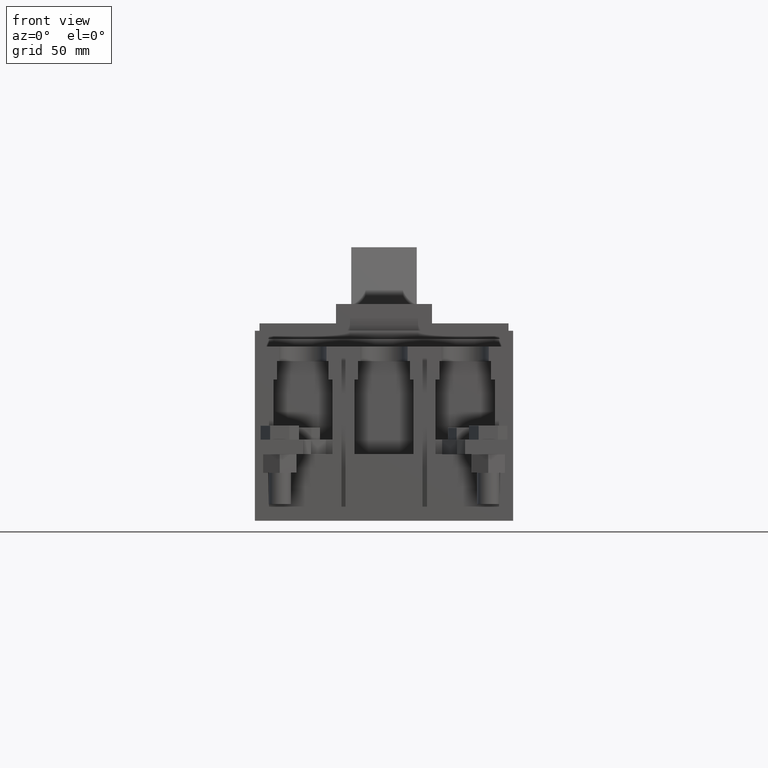
[diagram: clean part render]
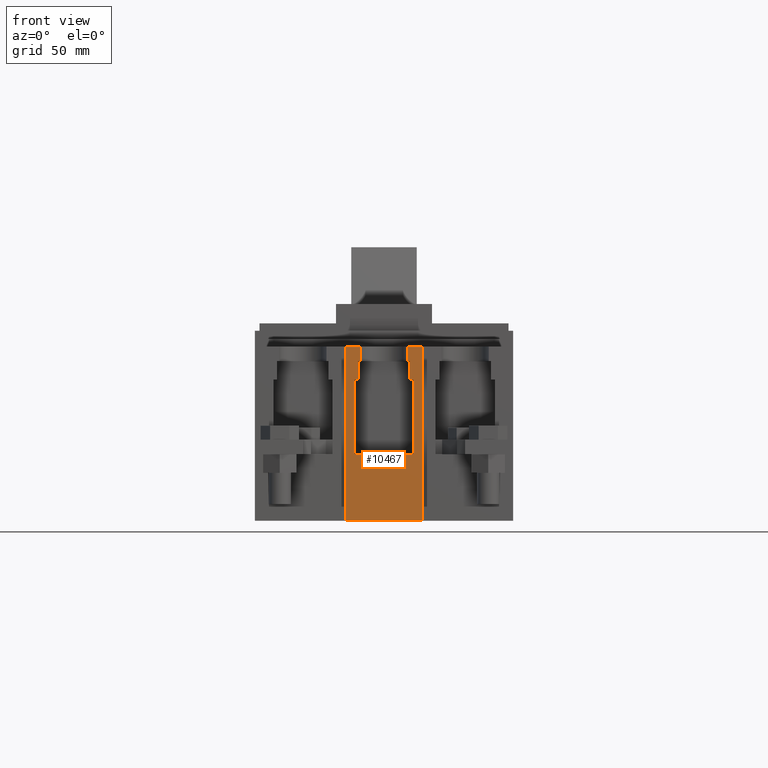
[diagram: same view with one face highlighted and labeled with its STEP entity id]
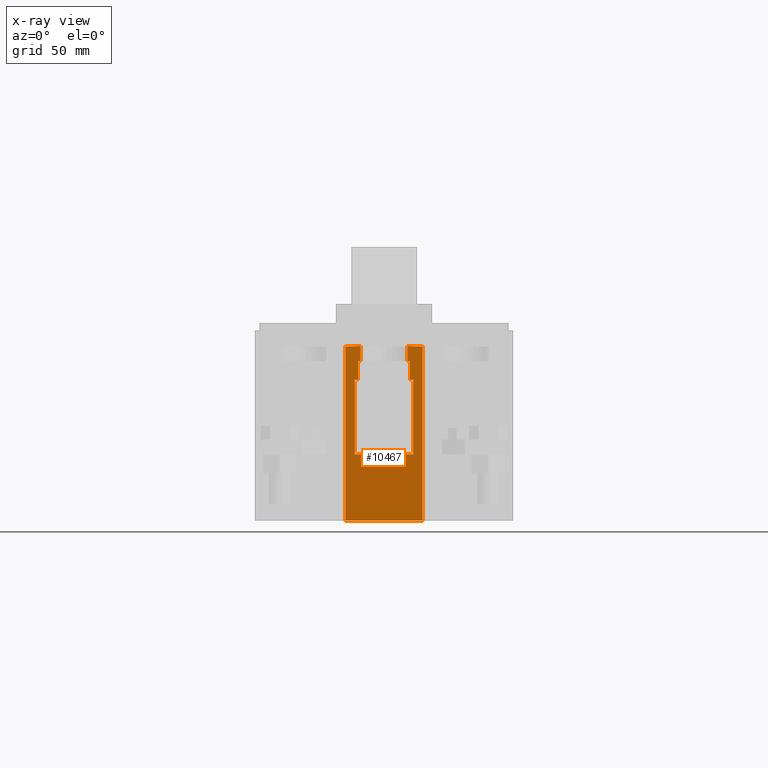
[diagram: x-ray of the same camera — body ghosted, the highlighted face saturated]
A machine part, front view. The second image highlights one B-rep face of the part: STEP entity #10467.
The next image is the same camera in x-ray: the body ghosted, the highlighted face saturated — about 0% of this face is hidden behind the body in this view.
In plain terms, the highlighted planar face has unit normal (0, -1, 0).
Its self-contained STEP definition (entity closure, byte-faithful):
#43 = CARTESIAN_POINT ( 'NONE',  ( 0.6299212598425196763, -0.8267716535433071723, 3.011811023622047223 ) ) ;
#228 = VECTOR ( 'NONE', #11073, 39.37007874015748143 ) ;
#235 = CARTESIAN_POINT ( 'NONE',  ( 2.755905511811024056, -0.8267716535433071723, 3.011811023622047223 ) ) ;
#385 = LINE ( 'NONE', #16103, #2447 ) ;
#615 = VECTOR ( 'NONE', #15303, 39.37007874015748143 ) ;
#675 = ORIENTED_EDGE ( 'NONE', *, *, #4489, .T. ) ;
#752 = EDGE_CURVE ( 'NONE', #11525, #11514, #17885, .T. ) ;
#1292 = LINE ( 'NONE', #16289, #2675 ) ;
#1373 = CARTESIAN_POINT ( 'NONE',  ( -0.5511811023622046335, -0.8267716535433071723, 3.720472440944881942 ) ) ;
#1375 = VERTEX_POINT ( 'NONE', #1417 ) ;
#1400 = CARTESIAN_POINT ( 'NONE',  ( -0.8208661417322837828, -0.8267716535433071723, 0.0000000000000000000 ) ) ;
#1417 = CARTESIAN_POINT ( 'NONE',  ( 0.6299212598425196763, -0.8267716535433071723, 1.417322834645669438 ) ) ;
#1787 = CARTESIAN_POINT ( 'NONE',  ( 0.8208661417322835607, -0.8267716535433070613, 3.720472440944881942 ) ) ;
#1974 = CARTESIAN_POINT ( 'NONE',  ( 0.5511811023622046335, -0.8267716535433071723, 3.405511811023622215 ) ) ;
#2072 = LINE ( 'NONE', #18189, #9966 ) ;
#2159 = VECTOR ( 'NONE', #2767, 39.37007874015748143 ) ;
#2284 = EDGE_LOOP ( 'NONE', ( #15803, #17686, #14650, #9039, #18506, #2936, #16752, #15730, #675, #9549, #16918, #14915, #10842, #15610, #11274, #11782 ) ) ;
#2390 = LINE ( 'NONE', #10164, #18717 ) ;
#2410 = CARTESIAN_POINT ( 'NONE',  ( 0.5039370078740157410, -0.8267716535433071723, 3.720472440944881942 ) ) ;
#2447 = VECTOR ( 'NONE', #4800, 39.37007874015748143 ) ;
#2579 = LINE ( 'NONE', #235, #7552 ) ;
#2675 = VECTOR ( 'NONE', #16412, 39.37007874015748143 ) ;
#2693 = CARTESIAN_POINT ( 'NONE',  ( -0.5511811023622047445, -0.8267716535433071723, 3.405511811023622215 ) ) ;
#2767 = DIRECTION ( 'NONE',  ( 1.000000000000000000, 0.0000000000000000000, -0.0000000000000000000 ) ) ;
#2789 = CARTESIAN_POINT ( 'NONE',  ( 2.755905511811024056, -0.8267716535433071723, 0.0000000000000000000 ) ) ;
#2936 = ORIENTED_EDGE ( 'NONE', *, *, #16506, .T. ) ;
#3255 = VECTOR ( 'NONE', #3713, 39.37007874015748143 ) ;
#3392 = VECTOR ( 'NONE', #13156, 39.37007874015748143 ) ;
#3626 = DIRECTION ( 'NONE',  ( 1.000000000000000000, 0.0000000000000000000, -0.0000000000000000000 ) ) ;
#3693 = LINE ( 'NONE', #3780, #3255 ) ;
#3713 = DIRECTION ( 'NONE',  ( -1.000000000000000000, -0.0000000000000000000, -0.0000000000000000000 ) ) ;
#3780 = CARTESIAN_POINT ( 'NONE',  ( 2.755905511811024056, -0.8267716535433071723, 3.720472440944881942 ) ) ;
#3890 = VERTEX_POINT ( 'NONE', #2693 ) ;
#4073 = AXIS2_PLACEMENT_3D ( 'NONE', #10471, #16394, #7791 ) ;
#4414 = VERTEX_POINT ( 'NONE', #17550 ) ;
#4489 = EDGE_CURVE ( 'NONE', #18587, #1375, #11025, .T. ) ;
#4502 = DIRECTION ( 'NONE',  ( -0.0000000000000000000, 0.0000000000000000000, 1.000000000000000000 ) ) ;
#4683 = EDGE_CURVE ( 'NONE', #7470, #13254, #7173, .T. ) ;
#4800 = DIRECTION ( 'NONE',  ( -1.000000000000000000, -0.0000000000000000000, -0.0000000000000000000 ) ) ;
#5114 = DIRECTION ( 'NONE',  ( -1.000000000000000000, -0.0000000000000000000, -0.0000000000000000000 ) ) ;
#5170 = VERTEX_POINT ( 'NONE', #13619 ) ;
#6004 = VECTOR ( 'NONE', #4502, 39.37007874015748143 ) ;
#6112 = EDGE_CURVE ( 'NONE', #5170, #10410, #14325, .T. ) ;
#6291 = CARTESIAN_POINT ( 'NONE',  ( 0.8208661417322835607, -0.8267716535433071723, 3.720472440944881942 ) ) ;
#6502 = VECTOR ( 'NONE', #3626, 39.37007874015748143 ) ;
#6601 = CARTESIAN_POINT ( 'NONE',  ( -0.8208661417322837828, -0.8267716535433070613, 3.720472440944881942 ) ) ;
#6663 = EDGE_CURVE ( 'NONE', #3890, #11236, #18530, .T. ) ;
#6851 = EDGE_CURVE ( 'NONE', #5170, #13284, #9207, .T. ) ;
#7173 = LINE ( 'NONE', #13949, #615 ) ;
#7326 = EDGE_CURVE ( 'NONE', #13254, #3890, #15253, .T. ) ;
#7470 = VERTEX_POINT ( 'NONE', #8584 ) ;
#7552 = VECTOR ( 'NONE', #10229, 39.37007874015748143 ) ;
#7791 = DIRECTION ( 'NONE',  ( 0.0000000000000000000, -0.0000000000000000000, -1.000000000000000000 ) ) ;
#7811 = EDGE_CURVE ( 'NONE', #10410, #11525, #3693, .T. ) ;
#7971 = EDGE_CURVE ( 'NONE', #1375, #16665, #385, .T. ) ;
#8000 = CARTESIAN_POINT ( 'NONE',  ( 2.755905511811024056, -0.8267716535433071723, 3.720472440944881942 ) ) ;
#8294 = CARTESIAN_POINT ( 'NONE',  ( 0.5039370078740157410, -0.8267716535433071723, 3.405511811023622215 ) ) ;
#8355 = VERTEX_POINT ( 'NONE', #11307 ) ;
#8584 = CARTESIAN_POINT ( 'NONE',  ( -0.6299212598425196763, -0.8267716535433071723, 3.011811023622047223 ) ) ;
#8864 = PLANE ( 'NONE',  #4073 ) ;
#9039 = ORIENTED_EDGE ( 'NONE', *, *, #7811, .T. ) ;
#9207 = LINE ( 'NONE', #2789, #13031 ) ;
#9247 = CARTESIAN_POINT ( 'NONE',  ( -0.6299212598425196763, -0.8267716535433071723, 1.417322834645669438 ) ) ;
#9253 = VECTOR ( 'NONE', #5114, 39.37007874015748143 ) ;
#9263 = DIRECTION ( 'NONE',  ( 0.0000000000000000000, -0.0000000000000000000, -1.000000000000000000 ) ) ;
#9549 = ORIENTED_EDGE ( 'NONE', *, *, #7971, .T. ) ;
#9966 = VECTOR ( 'NONE', #9263, 39.37007874015748143 ) ;
#10157 = VECTOR ( 'NONE', #18429, 39.37007874015748143 ) ;
#10164 = CARTESIAN_POINT ( 'NONE',  ( -0.8208661417322835607, -0.8267716535433071723, 3.720472440944881942 ) ) ;
#10229 = DIRECTION ( 'NONE',  ( 1.000000000000000000, 0.0000000000000000000, 0.0000000000000000000 ) ) ;
#10410 = VERTEX_POINT ( 'NONE', #1787 ) ;
#10467 = ADVANCED_FACE ( 'NONE', ( #11349 ), #8864, .T. ) ;
#10471 = CARTESIAN_POINT ( 'NONE',  ( 2.755905511811024056, -0.8267716535433071723, 3.720472440944881942 ) ) ;
#10548 = VERTEX_POINT ( 'NONE', #1974 ) ;
#10838 = LINE ( 'NONE', #18454, #228 ) ;
#10842 = ORIENTED_EDGE ( 'NONE', *, *, #7326, .T. ) ;
#11025 = LINE ( 'NONE', #11725, #3392 ) ;
#11073 = DIRECTION ( 'NONE',  ( -0.0000000000000000000, 0.0000000000000000000, 1.000000000000000000 ) ) ;
#11158 = EDGE_CURVE ( 'NONE', #4414, #11301, #12414, .T. ) ;
#11236 = VERTEX_POINT ( 'NONE', #18191 ) ;
#11274 = ORIENTED_EDGE ( 'NONE', *, *, #16336, .T. ) ;
#11301 = VERTEX_POINT ( 'NONE', #6601 ) ;
#11307 = CARTESIAN_POINT ( 'NONE',  ( 0.5511811023622046335, -0.8267716535433071723, 3.011811023622047223 ) ) ;
#11349 = FACE_OUTER_BOUND ( 'NONE', #2284, .T. ) ;
#11380 = CARTESIAN_POINT ( 'NONE',  ( 0.0000000000000000000, -0.8267716535433071723, 3.405511811023622215 ) ) ;
#11514 = VERTEX_POINT ( 'NONE', #8294 ) ;
#11525 = VERTEX_POINT ( 'NONE', #15632 ) ;
#11725 = CARTESIAN_POINT ( 'NONE',  ( 0.6299212598425196763, -0.8267716535433071723, 3.720472440944881942 ) ) ;
#11782 = ORIENTED_EDGE ( 'NONE', *, *, #11158, .T. ) ;
#12414 = LINE ( 'NONE', #8000, #9253 ) ;
#12924 = DIRECTION ( 'NONE',  ( -1.000000000000000000, 0.0000000000000000000, -0.0000000000000000000 ) ) ;
#13031 = VECTOR ( 'NONE', #12924, 39.37007874015748143 ) ;
#13156 = DIRECTION ( 'NONE',  ( 0.0000000000000000000, -0.0000000000000000000, -1.000000000000000000 ) ) ;
#13254 = VERTEX_POINT ( 'NONE', #17280 ) ;
#13284 = VERTEX_POINT ( 'NONE', #1400 ) ;
#13431 = EDGE_CURVE ( 'NONE', #8355, #18587, #2579, .T. ) ;
#13619 = CARTESIAN_POINT ( 'NONE',  ( 0.8208661417322835607, -0.8267716535433071723, 0.0000000000000000000 ) ) ;
#13855 = VECTOR ( 'NONE', #16489, 39.37007874015748143 ) ;
#13949 = CARTESIAN_POINT ( 'NONE',  ( 2.755905511811024056, -0.8267716535433071723, 3.011811023622047223 ) ) ;
#14325 = LINE ( 'NONE', #6291, #13855 ) ;
#14650 = ORIENTED_EDGE ( 'NONE', *, *, #6112, .T. ) ;
#14915 = ORIENTED_EDGE ( 'NONE', *, *, #4683, .T. ) ;
#15253 = LINE ( 'NONE', #1373, #6004 ) ;
#15303 = DIRECTION ( 'NONE',  ( 1.000000000000000000, 0.0000000000000000000, 0.0000000000000000000 ) ) ;
#15610 = ORIENTED_EDGE ( 'NONE', *, *, #6663, .T. ) ;
#15632 = CARTESIAN_POINT ( 'NONE',  ( 0.5039370078740157410, -0.8267716535433067282, 3.720472440944881942 ) ) ;
#15730 = ORIENTED_EDGE ( 'NONE', *, *, #13431, .T. ) ;
#15803 = ORIENTED_EDGE ( 'NONE', *, *, #18385, .T. ) ;
#15833 = LINE ( 'NONE', #11380, #2159 ) ;
#16103 = CARTESIAN_POINT ( 'NONE',  ( 2.755905511811024056, -0.8267716535433071723, 1.417322834645669438 ) ) ;
#16218 = EDGE_CURVE ( 'NONE', #10548, #8355, #2072, .T. ) ;
#16289 = CARTESIAN_POINT ( 'NONE',  ( -0.6299212598425196763, -0.8267716535433071723, 3.720472440944881942 ) ) ;
#16336 = EDGE_CURVE ( 'NONE', #11236, #4414, #10838, .T. ) ;
#16394 = DIRECTION ( 'NONE',  ( 0.0000000000000000000, -1.000000000000000000, 0.0000000000000000000 ) ) ;
#16412 = DIRECTION ( 'NONE',  ( -0.0000000000000000000, 0.0000000000000000000, 1.000000000000000000 ) ) ;
#16489 = DIRECTION ( 'NONE',  ( -0.0000000000000000000, 0.0000000000000000000, 1.000000000000000000 ) ) ;
#16506 = EDGE_CURVE ( 'NONE', #11514, #10548, #15833, .T. ) ;
#16526 = CARTESIAN_POINT ( 'NONE',  ( 0.0000000000000000000, -0.8267716535433071723, 3.405511811023622215 ) ) ;
#16664 = EDGE_CURVE ( 'NONE', #16665, #7470, #1292, .T. ) ;
#16665 = VERTEX_POINT ( 'NONE', #9247 ) ;
#16752 = ORIENTED_EDGE ( 'NONE', *, *, #16218, .T. ) ;
#16918 = ORIENTED_EDGE ( 'NONE', *, *, #16664, .T. ) ;
#17280 = CARTESIAN_POINT ( 'NONE',  ( -0.5511811023622046335, -0.8267716535433071723, 3.011811023622047223 ) ) ;
#17550 = CARTESIAN_POINT ( 'NONE',  ( -0.5039370078740159631, -0.8267716535433067282, 3.720472440944881942 ) ) ;
#17686 = ORIENTED_EDGE ( 'NONE', *, *, #6851, .F. ) ;
#17885 = LINE ( 'NONE', #2410, #10157 ) ;
#18189 = CARTESIAN_POINT ( 'NONE',  ( 0.5511811023622046335, -0.8267716535433071723, 3.720472440944881942 ) ) ;
#18191 = CARTESIAN_POINT ( 'NONE',  ( -0.5039370078740157410, -0.8267716535433071723, 3.405511811023622215 ) ) ;
#18385 = EDGE_CURVE ( 'NONE', #11301, #13284, #2390, .T. ) ;
#18429 = DIRECTION ( 'NONE',  ( 0.0000000000000000000, -0.0000000000000000000, -1.000000000000000000 ) ) ;
#18454 = CARTESIAN_POINT ( 'NONE',  ( -0.5039370078740159631, -0.8267716535433071723, 3.720472440944881942 ) ) ;
#18506 = ORIENTED_EDGE ( 'NONE', *, *, #752, .T. ) ;
#18530 = LINE ( 'NONE', #16526, #6502 ) ;
#18587 = VERTEX_POINT ( 'NONE', #43 ) ;
#18687 = DIRECTION ( 'NONE',  ( 0.0000000000000000000, 0.0000000000000000000, -1.000000000000000000 ) ) ;
#18717 = VECTOR ( 'NONE', #18687, 39.37007874015748143 ) ;